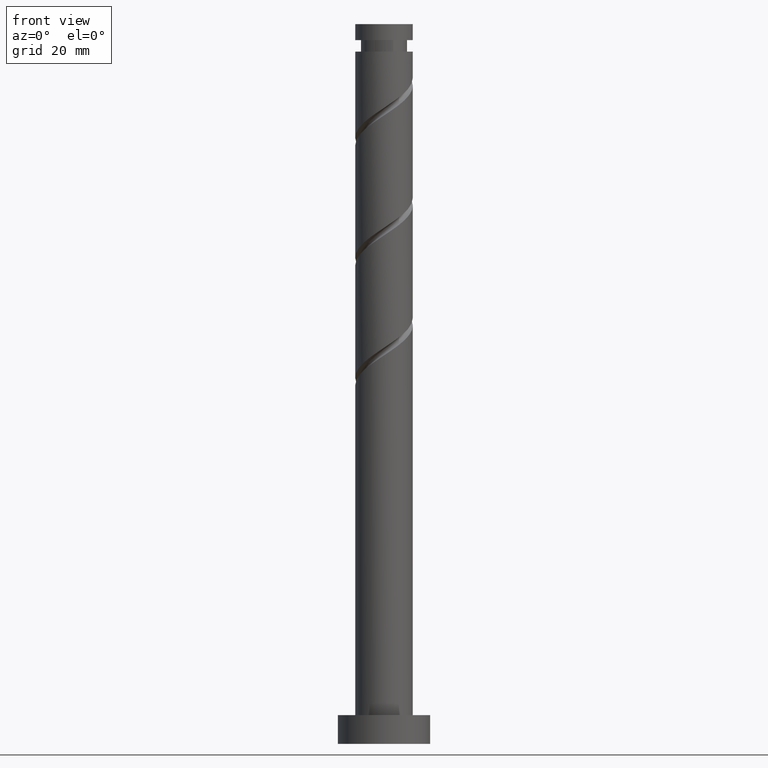
[diagram: clean part render]
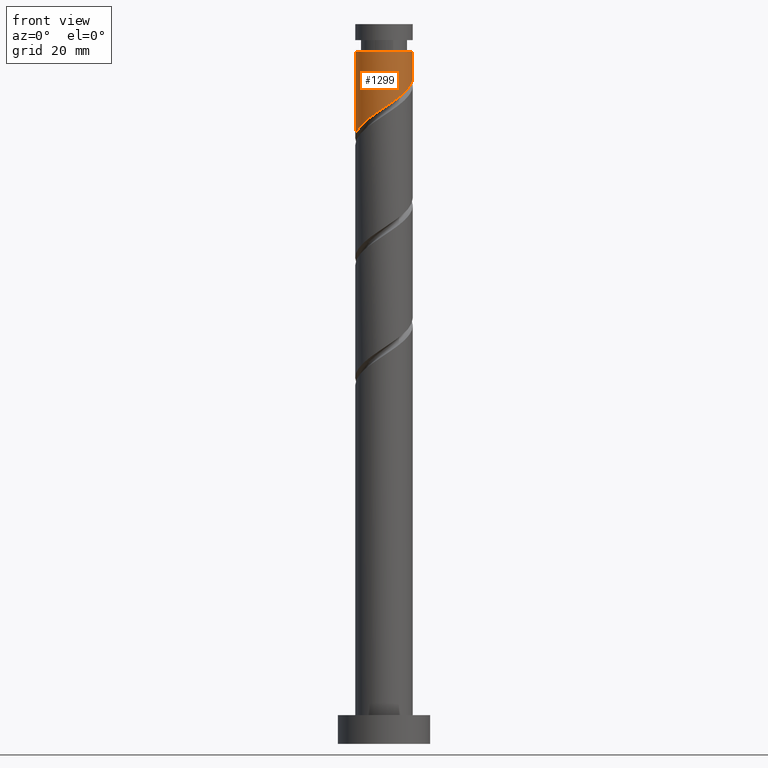
[diagram: same view with one face highlighted and labeled with its STEP entity id]
A machine part, front view. The second image highlights one B-rep face of the part: STEP entity #1299.
In plain terms, the highlighted cylindrical surface (edge-blend (fillet) strip) has radius 5 mm, axis along (-0, -0, -1).
Its self-contained STEP definition (entity closure, byte-faithful):
#66 = DIRECTION ( 'NONE',  ( -1.000000000000000000, 0.000000000000000000, 0.000000000000000000 ) ) ;
#67 = CIRCLE ( 'NONE', #487, 4.999999999999997335 ) ;
#71 = ORIENTED_EDGE ( 'NONE', *, *, #1570, .T. ) ;
#103 = CARTESIAN_POINT ( 'NONE',  ( -4.999999999999997335, 0.000000000000000000, 120.2213744033227556 ) ) ;
#131 = CARTESIAN_POINT ( 'NONE',  ( 4.999999999999998224, 1.859144745117525292E-15, 115.6778435114596704 ) ) ;
#140 = DIRECTION ( 'NONE',  ( -1.000000000000000000, 0.000000000000000000, 0.000000000000000000 ) ) ;
#156 = LINE ( 'NONE', #1027, #263 ) ;
#196 = CARTESIAN_POINT ( 'NONE',  ( 4.352708902590731732, -2.460472558129308318, 113.9713744033227556 ) ) ;
#217 = ORIENTED_EDGE ( 'NONE', *, *, #483, .F. ) ;
#221 = CARTESIAN_POINT ( 'NONE',  ( -4.967644957101771119, -0.5678939867451754386, 105.6380410699894128 ) ) ;
#263 = VECTOR ( 'NONE', #915, 1000.000000000000000 ) ;
#296 = EDGE_CURVE ( 'NONE', #1548, #1332, #798, .T. ) ;
#334 = CARTESIAN_POINT ( 'NONE',  ( -4.549022214184796908, -2.075185990424286420, 106.6797077366560984 ) ) ;
#427 = CARTESIAN_POINT ( 'NONE',  ( 0.5678939867451748835, -4.967644957101771119, 110.8463744033227698 ) ) ;
#441 = CARTESIAN_POINT ( 'NONE',  ( 0.000000000000000000, 0.000000000000000000, 120.2213744033227556 ) ) ;
#450 = CARTESIAN_POINT ( 'NONE',  ( -0.2189036795163941118, -5.057590528356072035, 110.3255410699894270 ) ) ;
#457 = CARTESIAN_POINT ( 'NONE',  ( -3.685109482041948770, -3.379344330689683762, 107.7213744033227556 ) ) ;
#460 = ORIENTED_EDGE ( 'NONE', *, *, #512, .T. ) ;
#483 = EDGE_CURVE ( 'NONE', #1332, #1165, #1202, .T. ) ;
#484 = CYLINDRICAL_SURFACE ( 'NONE', #1392, 5.000000000000000000 ) ;
#487 = AXIS2_PLACEMENT_3D ( 'NONE', #441, #1405, #66 ) ;
#495 = FACE_OUTER_BOUND ( 'NONE', #807, .T. ) ;
#512 = EDGE_CURVE ( 'NONE', #1548, #709, #67, .T. ) ;
#569 = ORIENTED_EDGE ( 'NONE', *, *, #296, .F. ) ;
#574 = CARTESIAN_POINT ( 'NONE',  ( -2.460472558129308318, -4.352708902590731732, 108.7630410699894554 ) ) ;
#578 = CARTESIAN_POINT ( 'NONE',  ( 4.899999999999997691, -0.9949874371066218526, 115.0130410699894270 ) ) ;
#583 = CARTESIAN_POINT ( 'NONE',  ( 3.963008333537539229, -3.149873921561767265, 113.4505410699893844 ) ) ;
#689 = CARTESIAN_POINT ( 'NONE',  ( -4.877699385847463986, -1.354691653006743879, 106.1588744033227414 ) ) ;
#709 = VERTEX_POINT ( 'NONE', #103 ) ;
#723 = CARTESIAN_POINT ( 'NONE',  ( -4.999999999999998224, -2.578813678711405885E-15, 105.2611768447930132 ) ) ;
#798 = LINE ( 'NONE', #1038, #1007 ) ;
#807 = EDGE_LOOP ( 'NONE', ( #569, #460, #71, #217 ) ) ;
#809 = CARTESIAN_POINT ( 'NONE',  ( -1.771071194696848261, -4.742409471643918906, 109.2838744033227130 ) ) ;
#819 = DIRECTION ( 'NONE',  ( -0.000000000000000000, -0.000000000000000000, -1.000000000000000000 ) ) ;
#832 = CARTESIAN_POINT ( 'NONE',  ( 1.354691653006743657, -4.877699385847463986, 111.3672077366560700 ) ) ;
#915 = DIRECTION ( 'NONE',  ( -0.000000000000000000, -0.000000000000000000, -1.000000000000000000 ) ) ;
#943 = CARTESIAN_POINT ( 'NONE',  ( 4.742409471643918906, -1.771071194696848705, 114.4922077366561126 ) ) ;
#1007 = VECTOR ( 'NONE', #819, 1000.000000000000000 ) ;
#1027 = CARTESIAN_POINT ( 'NONE',  ( -5.000000000000000000, 0.000000000000000000, 125.0000000000000000 ) ) ;
#1036 = CARTESIAN_POINT ( 'NONE',  ( 2.795680327841826962, -4.220345042522128054, 112.4088744033227414 ) ) ;
#1038 = CARTESIAN_POINT ( 'NONE',  ( 5.000000000000000000, 6.123233995736766282E-16, 125.0000000000000000 ) ) ;
#1063 = CARTESIAN_POINT ( 'NONE',  ( -4.999999999999997335, -0.2848686872321613550, 105.4506879340002996 ) ) ;
#1067 = CARTESIAN_POINT ( 'NONE',  ( 4.999999999999997335, -0.5025189076296023849, 115.3435389360518002 ) ) ;
#1165 = VERTEX_POINT ( 'NONE', #723 ) ;
#1202 =( BOUNDED_CURVE ( )  B_SPLINE_CURVE ( 2, ( #1546, #1067, #578, #943, #196, #583, #1536, #1036, #1521, #832, #427, #450, #1318, #809, #574, #1310, #457, #1296, #334, #689, #221, #1063, #1428 ),
 .UNSPECIFIED., .F., .T. ) 
 B_SPLINE_CURVE_WITH_KNOTS ( ( 3, 2, 2, 2, 2, 2, 2, 2, 2, 2, 2, 3 ),
 ( 0.3045322023138550827, 0.3125000000000000000, 0.3250000000000000111, 0.3375000000000000222, 0.3499999999999999778, 0.3624999999999999889, 0.3750000000000000000, 0.3875000000000000111, 0.4000000000000000222, 0.4124999999999999778, 0.4249999999999999889, 0.4295322023138551937 ),
 .UNSPECIFIED. ) 
 CURVE ( )  GEOMETRIC_REPRESENTATION_ITEM ( )  RATIONAL_B_SPLINE_CURVE ( ( 0.9039174447099324050, 0.9019565955404615920, 0.9090909090909098378, 0.8978984914501261239, 0.9090909090909098378, 0.8978984914501261239, 0.9090909090909098378, 0.8978984914501261239, 0.9090909090909098378, 0.8978984914501261239, 0.9090909090909098378, 0.8978984914501261239, 0.9090909090909098378, 0.8978984914501261239, 0.9090909090909098378, 0.8978984914501261239, 0.9090909090909098378, 0.8978984914501261239, 0.9090909090909098378, 0.8978984914501261239, 0.9090909090909098378, 0.9050328050005743696, 0.9039174447099322940 ) ) 
 REPRESENTATION_ITEM ( '' )  );
#1235 = DIRECTION ( 'NONE',  ( -0.000000000000000000, -0.000000000000000000, -1.000000000000000000 ) ) ;
#1296 = CARTESIAN_POINT ( 'NONE',  ( -4.220345042522127166, -2.795680327841826962, 107.2005410699893986 ) ) ;
#1299 = ADVANCED_FACE ( 'NONE', ( #495 ), #484, .T. ) ;
#1310 = CARTESIAN_POINT ( 'NONE',  ( -3.149873921561767265, -3.963008333537539229, 108.2422077366560842 ) ) ;
#1318 = CARTESIAN_POINT ( 'NONE',  ( -0.9949874371066216305, -4.899999999999997691, 109.8047077366560842 ) ) ;
#1332 = VERTEX_POINT ( 'NONE', #131 ) ;
#1392 = AXIS2_PLACEMENT_3D ( 'NONE', #1470, #1235, #140 ) ;
#1405 = DIRECTION ( 'NONE',  ( -0.000000000000000000, -0.000000000000000000, -1.000000000000000000 ) ) ;
#1428 = CARTESIAN_POINT ( 'NONE',  ( -4.999999999999998224, -2.578813678711405491E-15, 105.2611768447930132 ) ) ;
#1470 = CARTESIAN_POINT ( 'NONE',  ( 0.000000000000000000, 0.000000000000000000, 125.0000000000000000 ) ) ;
#1485 = CARTESIAN_POINT ( 'NONE',  ( 4.999999999999997335, 6.123233995736764310E-16, 120.2213744033227556 ) ) ;
#1521 = CARTESIAN_POINT ( 'NONE',  ( 2.075185990424286420, -4.549022214184796908, 111.8880410699894270 ) ) ;
#1536 = CARTESIAN_POINT ( 'NONE',  ( 3.379344330689683762, -3.685109482041948770, 112.9297077366560984 ) ) ;
#1546 = CARTESIAN_POINT ( 'NONE',  ( 4.999999999999998224, 1.859144745117525292E-15, 115.6778435114596704 ) ) ;
#1548 = VERTEX_POINT ( 'NONE', #1485 ) ;
#1570 = EDGE_CURVE ( 'NONE', #709, #1165, #156, .T. ) ;